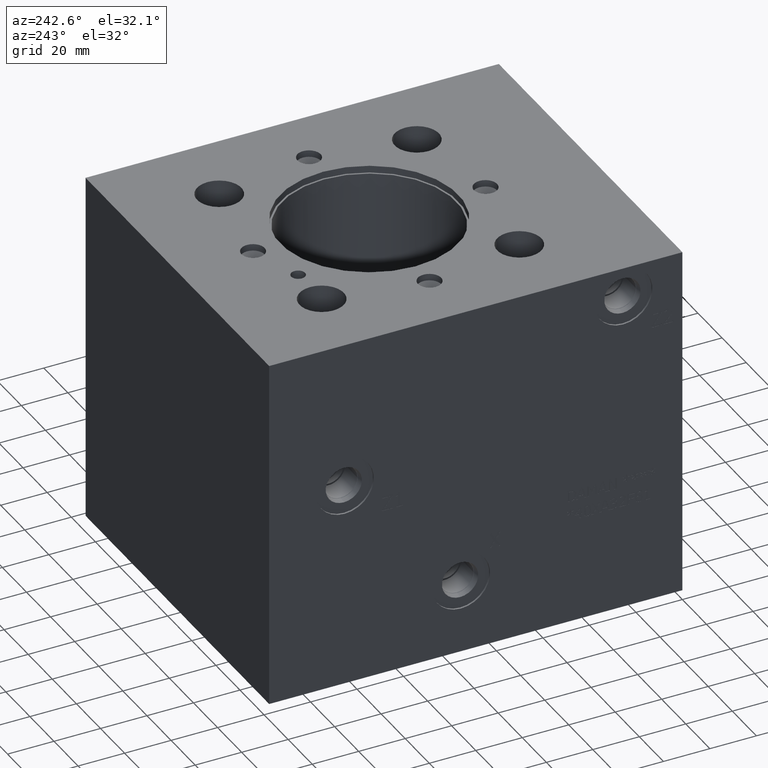
[diagram: clean part render]
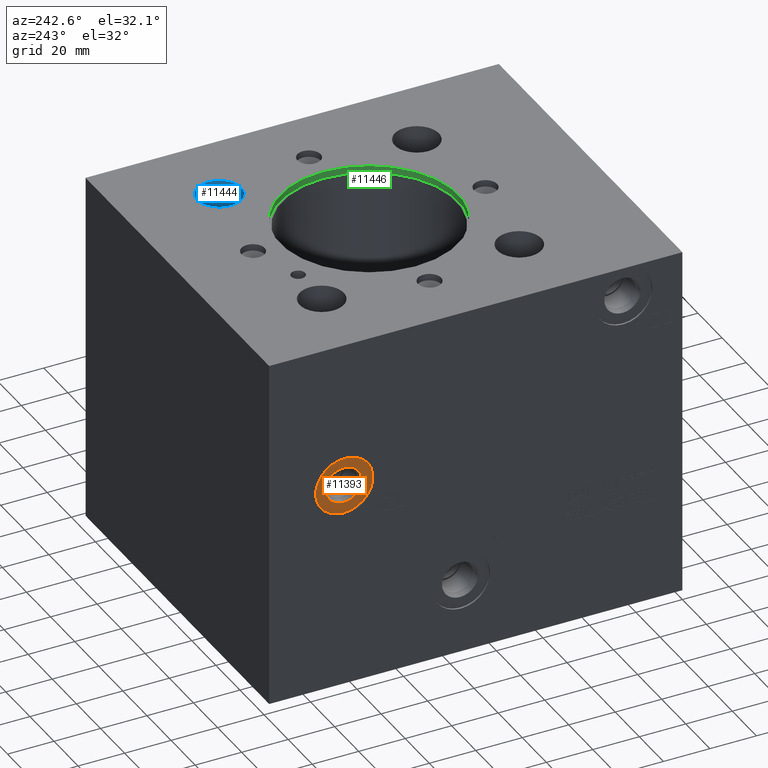
[diagram: same view with three faces highlighted in distinct colors, each labeled with its STEP entity id]
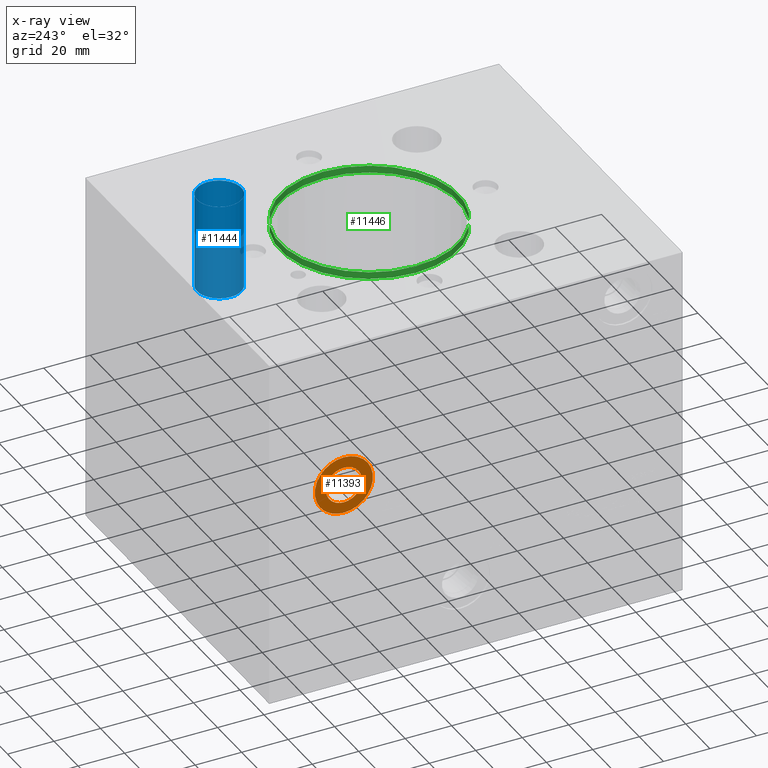
[diagram: x-ray of the same camera — body ghosted, the three highlighted faces saturated]
A machine part, auxiliary view with three faces highlighted in distinct colors.
The next image is the same camera in x-ray (body ghosted, the three faces saturated) — at least one of them is partly hidden behind the body in this view.
Their STEP definitions:

[orange] entity #11393 — the highlighted planar face has unit normal (1, 0, 0).
#303=CIRCLE('',#12062,12.5095);
#304=CIRCLE('',#12063,12.5095);
#305=CIRCLE('',#12065,7.79780000000001);
#306=CIRCLE('',#12066,7.79780000000001);
#487=FACE_BOUND('',#1978,.T.);
#1321=FACE_OUTER_BOUND('',#1977,.T.);
#1977=EDGE_LOOP('',(#9725,#9726));
#1978=EDGE_LOOP('',(#9727,#9728));
#5249=VERTEX_POINT('',#19055);
#5250=VERTEX_POINT('',#19057);
#5251=VERTEX_POINT('',#19061);
#5252=VERTEX_POINT('',#19062);
#6783=EDGE_CURVE('',#5249,#5250,#303,.T.);
#6784=EDGE_CURVE('',#5250,#5249,#304,.T.);
#6785=EDGE_CURVE('',#5251,#5252,#305,.T.);
#6786=EDGE_CURVE('',#5252,#5251,#306,.T.);
#9725=ORIENTED_EDGE('',*,*,#6784,.F.);
#9726=ORIENTED_EDGE('',*,*,#6783,.F.);
#9727=ORIENTED_EDGE('',*,*,#6785,.T.);
#9728=ORIENTED_EDGE('',*,*,#6786,.T.);
#10445=PLANE('',#12064);
#11393=ADVANCED_FACE('',(#1321,#487),#10445,.F.);
#12062=AXIS2_PLACEMENT_3D('',#19058,#14467,#14468);
#12063=AXIS2_PLACEMENT_3D('',#19059,#14469,#14470);
#12064=AXIS2_PLACEMENT_3D('',#19060,#14471,#14472);
#12065=AXIS2_PLACEMENT_3D('',#19063,#14473,#14474);
#12066=AXIS2_PLACEMENT_3D('',#19064,#14475,#14476);
#14467=DIRECTION('center_axis',(1.,0.,0.));
#14468=DIRECTION('ref_axis',(0.,0.,-1.));
#14469=DIRECTION('center_axis',(1.,0.,0.));
#14470=DIRECTION('ref_axis',(0.,0.,-1.));
#14471=DIRECTION('center_axis',(1.,0.,0.));
#14472=DIRECTION('ref_axis',(0.,0.,-1.));
#14473=DIRECTION('center_axis',(1.,0.,0.));
#14474=DIRECTION('ref_axis',(0.,0.,-1.));
#14475=DIRECTION('center_axis',(1.,0.,0.));
#14476=DIRECTION('ref_axis',(0.,0.,-1.));
#19055=CARTESIAN_POINT('',(0.7874,145.2626,76.3905));
#19057=CARTESIAN_POINT('',(0.7874,145.2626,101.4095));
#19058=CARTESIAN_POINT('Origin',(0.7874,145.2626,88.9));
#19059=CARTESIAN_POINT('Origin',(0.7874,145.2626,88.9));
#19060=CARTESIAN_POINT('Origin',(0.7874,145.2626,96.6978));
#19061=CARTESIAN_POINT('',(0.7874,145.2626,96.6978));
#19062=CARTESIAN_POINT('',(0.787399999999998,145.2626,81.1022));
#19063=CARTESIAN_POINT('Origin',(0.7874,145.2626,88.9));
#19064=CARTESIAN_POINT('Origin',(0.7874,145.2626,88.9));

[blue] entity #11444 — the highlighted cylindrical surface (bore or boss wall) has radius 9.525 mm, axis along (0, 0, 1).
#83=CYLINDRICAL_SURFACE('',#12203,9.525);
#390=CIRCLE('',#12200,9.525);
#391=CIRCLE('',#12201,9.525);
#393=CIRCLE('',#12204,9.525);
#394=CIRCLE('',#12205,9.525);
#1372=FACE_OUTER_BOUND('',#2037,.T.);
#2037=EDGE_LOOP('',(#9971,#9972,#9973,#9974,#9975,#9976));
#3168=LINE('',#19345,#4271);
#4271=VECTOR('',#14797,9.525);
#5347=VERTEX_POINT('',#19334);
#5348=VERTEX_POINT('',#19335);
#5350=VERTEX_POINT('',#19341);
#5351=VERTEX_POINT('',#19342);
#6912=EDGE_CURVE('',#5347,#5348,#390,.T.);
#6913=EDGE_CURVE('',#5348,#5347,#391,.T.);
#6915=EDGE_CURVE('',#5350,#5351,#393,.T.);
#6916=EDGE_CURVE('',#5351,#5350,#394,.T.);
#6917=EDGE_CURVE('',#5351,#5348,#3168,.T.);
#9971=ORIENTED_EDGE('',*,*,#6915,.F.);
#9972=ORIENTED_EDGE('',*,*,#6916,.F.);
#9973=ORIENTED_EDGE('',*,*,#6917,.T.);
#9974=ORIENTED_EDGE('',*,*,#6912,.F.);
#9975=ORIENTED_EDGE('',*,*,#6913,.F.);
#9976=ORIENTED_EDGE('',*,*,#6917,.F.);
#11444=ADVANCED_FACE('',(#1372),#83,.F.);
#12200=AXIS2_PLACEMENT_3D('',#19336,#14785,#14786);
#12201=AXIS2_PLACEMENT_3D('',#19337,#14787,#14788);
#12203=AXIS2_PLACEMENT_3D('',#19340,#14791,#14792);
#12204=AXIS2_PLACEMENT_3D('',#19343,#14793,#14794);
#12205=AXIS2_PLACEMENT_3D('',#19344,#14795,#14796);
#14785=DIRECTION('center_axis',(0.,0.,1.));
#14786=DIRECTION('ref_axis',(1.,0.,0.));
#14787=DIRECTION('center_axis',(0.,0.,1.));
#14788=DIRECTION('ref_axis',(1.,0.,0.));
#14791=DIRECTION('center_axis',(0.,0.,1.));
#14792=DIRECTION('ref_axis',(1.,0.,0.));
#14793=DIRECTION('center_axis',(0.,0.,-1.));
#14794=DIRECTION('ref_axis',(1.,0.,0.));
#14795=DIRECTION('center_axis',(0.,0.,-1.));
#14796=DIRECTION('ref_axis',(1.,0.,0.));
#14797=DIRECTION('',(0.,0.,-1.));
#19334=CARTESIAN_POINT('',(128.2446,137.7696,111.125));
#19335=CARTESIAN_POINT('',(109.1946,137.7696,111.125));
#19336=CARTESIAN_POINT('Origin',(118.7196,137.7696,111.125));
#19337=CARTESIAN_POINT('Origin',(118.7196,137.7696,111.125));
#19340=CARTESIAN_POINT('Origin',(118.7196,137.7696,131.7625));
#19341=CARTESIAN_POINT('',(128.2446,137.7696,152.4));
#19342=CARTESIAN_POINT('',(109.1946,137.7696,152.4));
#19343=CARTESIAN_POINT('Origin',(118.7196,137.7696,152.4));
#19344=CARTESIAN_POINT('Origin',(118.7196,137.7696,152.4));
#19345=CARTESIAN_POINT('',(109.1946,137.7696,131.7625));

[green] entity #11446 — the highlighted cylindrical surface (bore or boss wall) has radius 38.3159 mm, axis along (0, 0, -1).
#85=CYLINDRICAL_SURFACE('',#12207,38.3159);
#395=CIRCLE('',#12208,38.3159);
#396=CIRCLE('',#12209,38.3159);
#397=CIRCLE('',#12210,38.3159);
#398=CIRCLE('',#12211,38.3159);
#1374=FACE_OUTER_BOUND('',#2039,.T.);
#2039=EDGE_LOOP('',(#9982,#9983,#9984,#9985,#9986,#9987));
#3170=LINE('',#19354,#4273);
#4273=VECTOR('',#14807,38.3159);
#5352=VERTEX_POINT('',#19349);
#5353=VERTEX_POINT('',#19350);
#5354=VERTEX_POINT('',#19353);
#5355=VERTEX_POINT('',#19355);
#6919=EDGE_CURVE('',#5352,#5353,#395,.T.);
#6920=EDGE_CURVE('',#5353,#5352,#396,.T.);
#6921=EDGE_CURVE('',#5353,#5354,#3170,.T.);
#6922=EDGE_CURVE('',#5354,#5355,#397,.T.);
#6923=EDGE_CURVE('',#5355,#5354,#398,.T.);
#9982=ORIENTED_EDGE('',*,*,#6919,.F.);
#9983=ORIENTED_EDGE('',*,*,#6920,.F.);
#9984=ORIENTED_EDGE('',*,*,#6921,.T.);
#9985=ORIENTED_EDGE('',*,*,#6922,.T.);
#9986=ORIENTED_EDGE('',*,*,#6923,.T.);
#9987=ORIENTED_EDGE('',*,*,#6921,.F.);
#11446=ADVANCED_FACE('',(#1374),#85,.F.);
#12207=AXIS2_PLACEMENT_3D('',#19348,#14801,#14802);
#12208=AXIS2_PLACEMENT_3D('',#19351,#14803,#14804);
#12209=AXIS2_PLACEMENT_3D('',#19352,#14805,#14806);
#12210=AXIS2_PLACEMENT_3D('',#19356,#14808,#14809);
#12211=AXIS2_PLACEMENT_3D('',#19357,#14810,#14811);
#14801=DIRECTION('center_axis',(0.,0.,-1.));
#14802=DIRECTION('ref_axis',(1.,0.,0.));
#14803=DIRECTION('center_axis',(0.,0.,-1.));
#14804=DIRECTION('ref_axis',(1.,0.,0.));
#14805=DIRECTION('center_axis',(0.,0.,-1.));
#14806=DIRECTION('ref_axis',(1.,0.,0.));
#14807=DIRECTION('',(0.,0.,-1.));
#14808=DIRECTION('center_axis',(0.,0.,-1.));
#14809=DIRECTION('ref_axis',(1.,0.,0.));
#14810=DIRECTION('center_axis',(0.,0.,-1.));
#14811=DIRECTION('ref_axis',(1.,0.,0.));
#19348=CARTESIAN_POINT('Origin',(76.2,95.25,150.9014));
#19349=CARTESIAN_POINT('',(114.5159,95.25,152.4));
#19350=CARTESIAN_POINT('',(37.8841,95.25,152.4));
#19351=CARTESIAN_POINT('Origin',(76.2,95.25,152.4));
#19352=CARTESIAN_POINT('Origin',(76.2,95.25,152.4));
#19353=CARTESIAN_POINT('',(37.8841,95.25,149.4028));
#19354=CARTESIAN_POINT('',(37.8841,95.25,150.9014));
#19355=CARTESIAN_POINT('',(114.5159,95.25,149.4028));
#19356=CARTESIAN_POINT('Origin',(76.2,95.25,149.4028));
#19357=CARTESIAN_POINT('Origin',(76.2,95.25,149.4028));